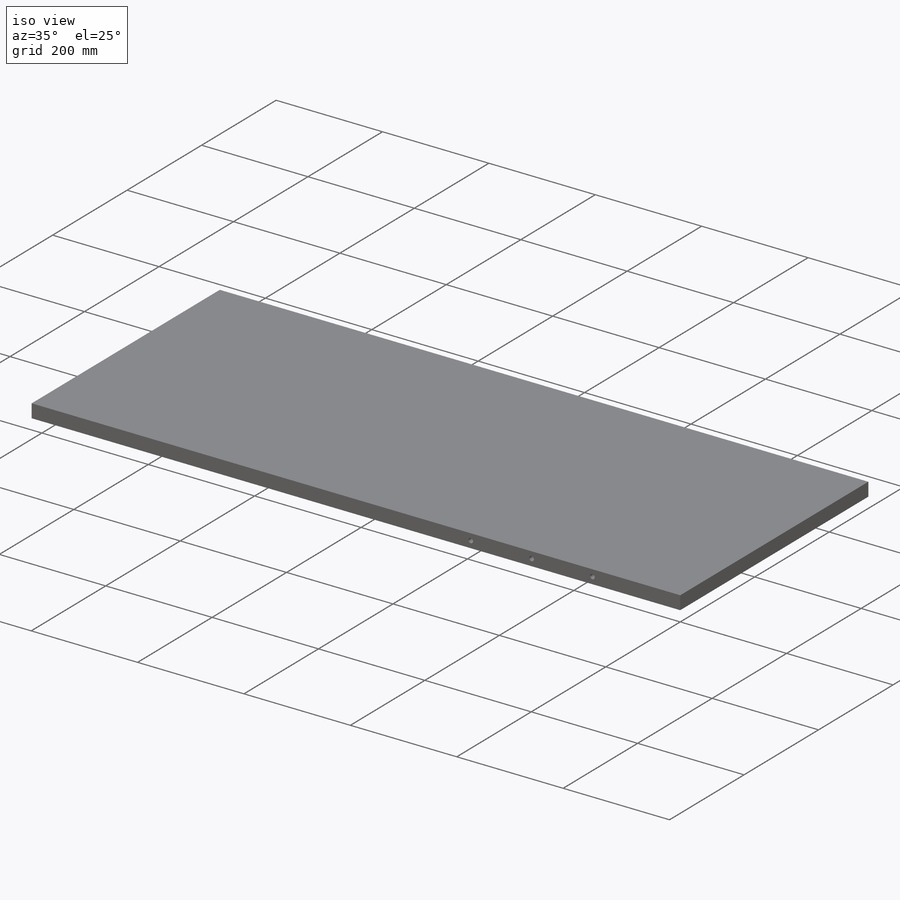
[diagram: iso view]
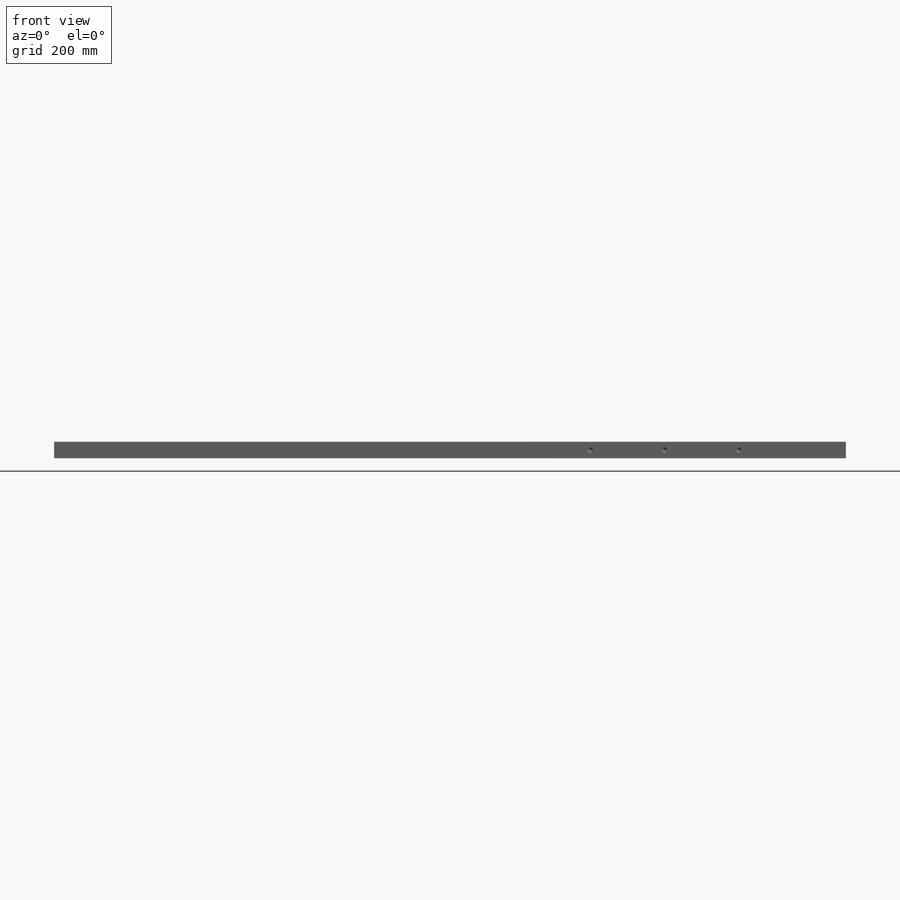
[diagram: front view]
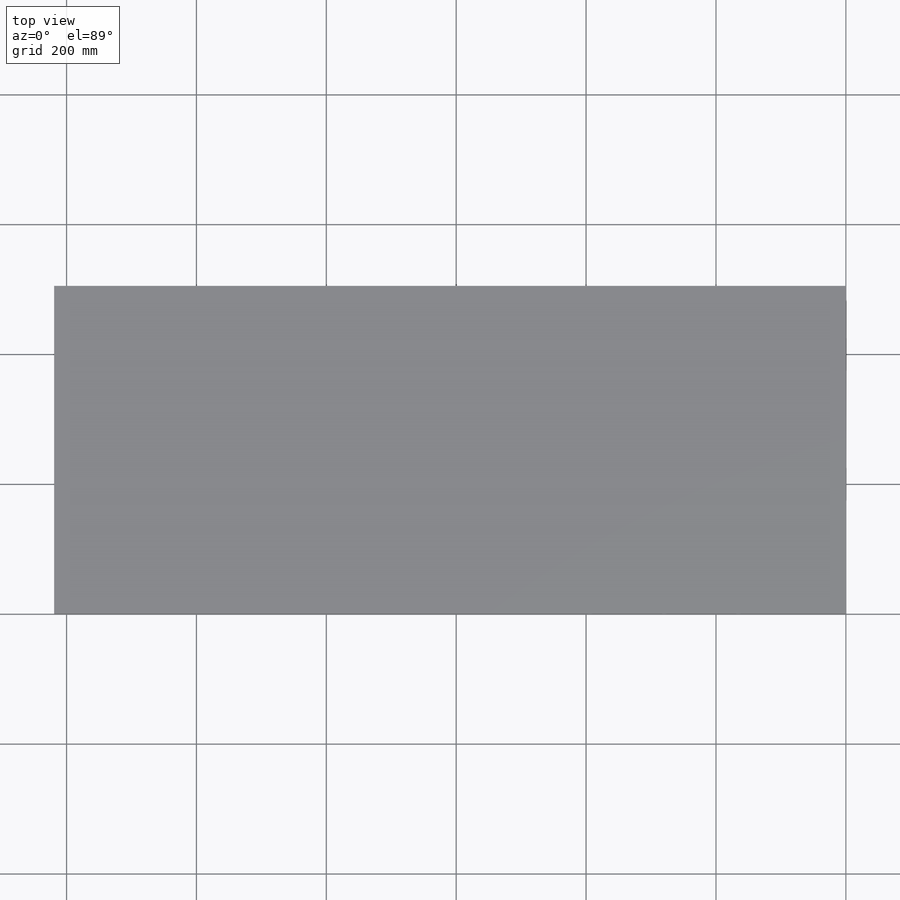
[diagram: top view]
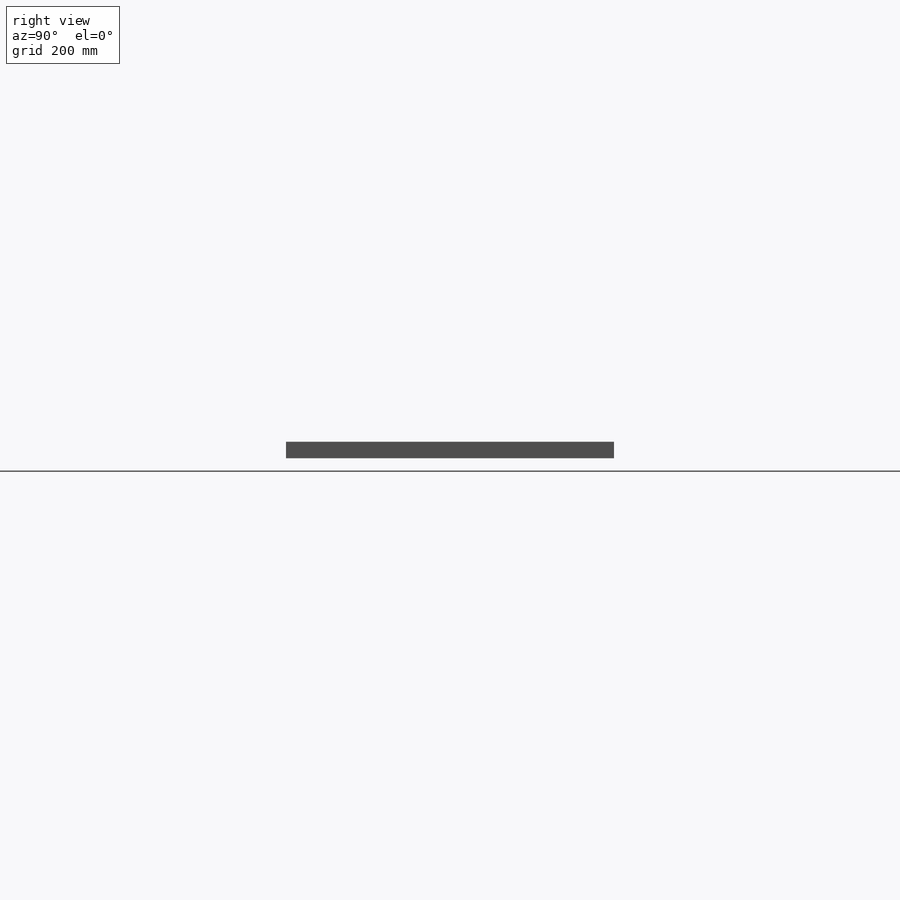
[diagram: right view]
SOLIDWORKS PART (.sldprt)
format: sldprt  version: not decoded by parser v0  size: 260,608 bytes
history: native  units: mm
features: sketch x13, hole x3, material x1, extrude x1, plane x1 (+12 scaffold rows collapsed)
feature tree (31):
  scaffold x12  (default folders/planes/origin — collapsed)
  material  "Material <not specified>"
  sketch  "Sketch1"  dims[D1=505.0mm D2=1219.2mm]
  extrude  "Boss-Extrude1"  Depth=25.4mm
  sketch  "Sketch2"  dims[c1.D1=152.4mm c1.D2=254.0mm c1.D3=12.7mm c1.D4=12.7mm c2.D1=152.4mm]
  hole  "Tap Drill for M10x1.5 Tap1"  Diameter=8.5mm Depth=20mm
  sketch  "Sketch4"
  sketch  "Sketch3"  dims[hole-wizard template sketch: 50 standard entries collapsed; hole parameters above]
  sketch  "Sketch5"
  hole  "Tap Drill for M10x1.5 Tap2"  Diameter=8.5mm Depth=20mm
  sketch  "Sketch8"
  sketch  "Sketch6"  dims[hole-wizard template sketch: 50 standard entries collapsed; hole parameters above]
  sketch  "Sketch12"
  sketch  "Sketch14"
  sketch  "Sketch15"  dims[D1=153.67mm D2=127.0mm]
  plane  "Plane1"
  sketch  "Sketch16"
  hole  "M10 Clearance Hole1"  Diameter=11mm Depth=25.4mm
  sketch  "Sketch18"
  sketch  "Sketch19"  dims[hole-wizard template sketch: 59 standard entries collapsed; hole parameters kept: c18.Thru Hole Dia.=11.0mm c18.Thru Hole Depth=25.4mm]
decode coverage: 10 of 17 modeling features carry decoded parameters
note: ~ marks probable driven/reference dimensions
note: suppression state not decoded; provenance and decode notes live in map.json
